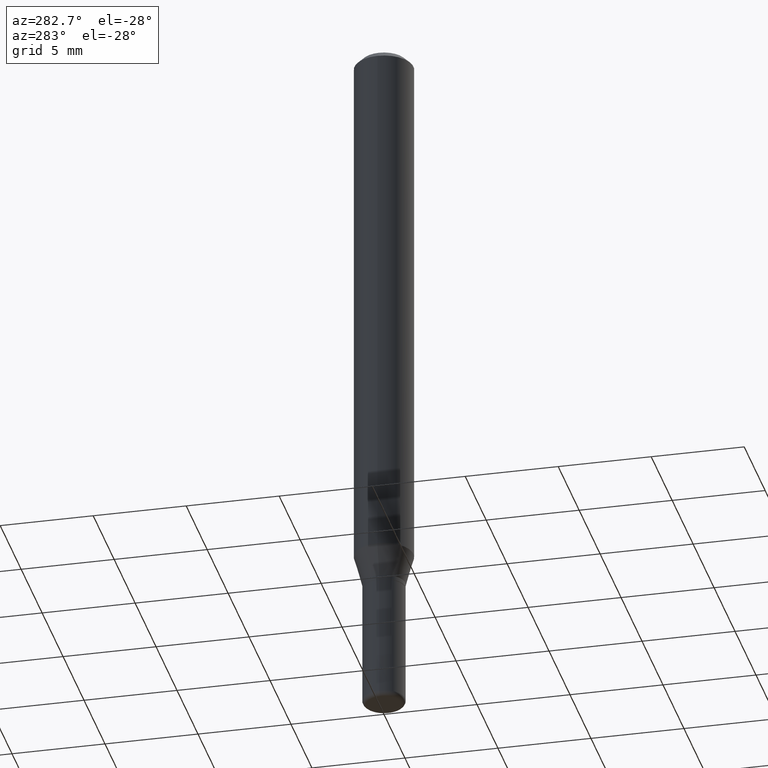
[diagram: clean part render]
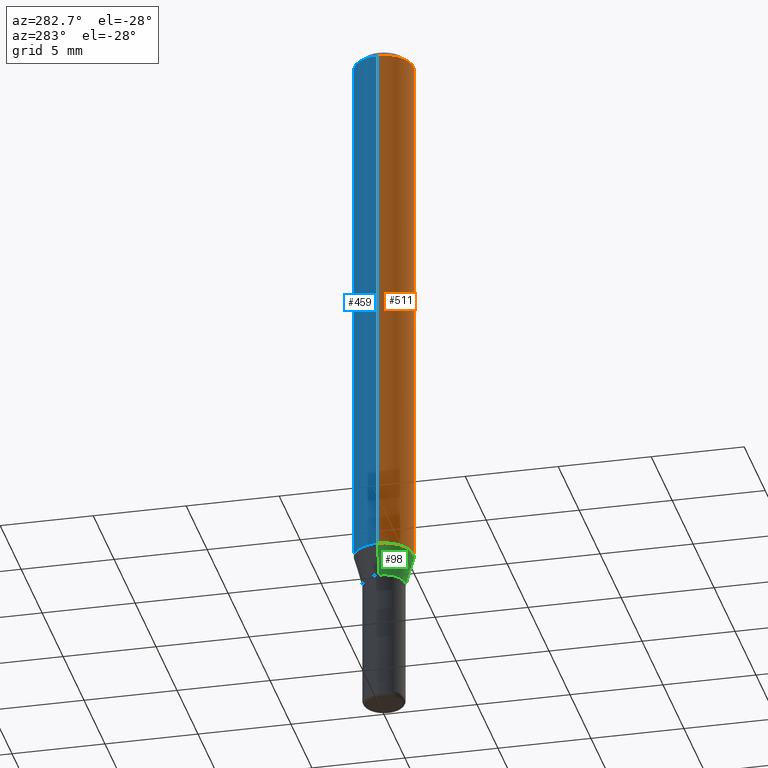
[diagram: same view with three faces highlighted in distinct colors, each labeled with its STEP entity id]
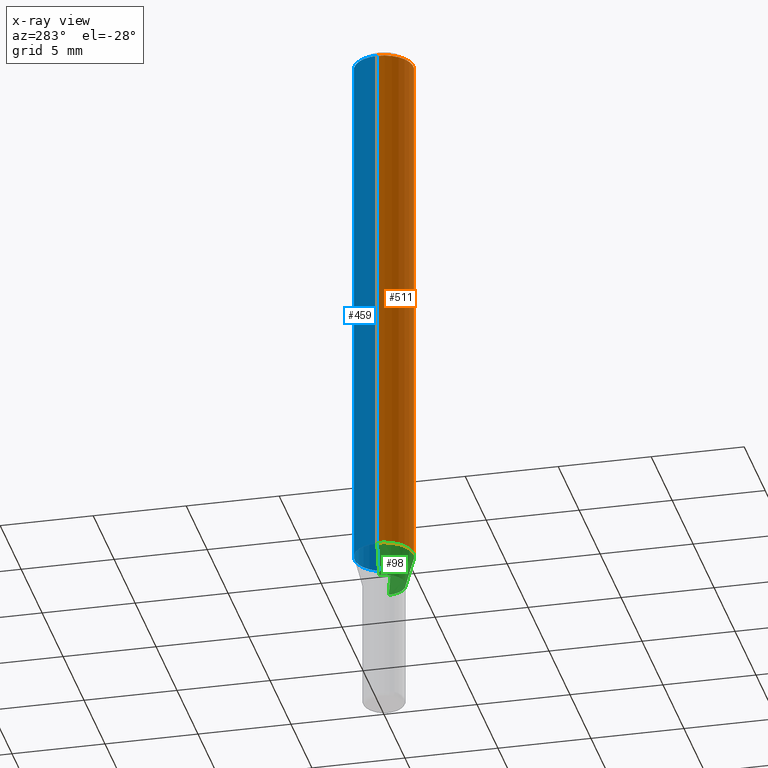
[diagram: x-ray of the same camera — body ghosted, the three highlighted faces saturated]
A machine part, auxiliary view with three faces highlighted in distinct colors.
The next image is the same camera in x-ray (body ghosted, the three faces saturated) — at least one of them is partly hidden behind the body in this view.
Their STEP definitions:

[orange] entity #511 — the highlighted cylindrical surface (edge-blend (fillet) strip) has radius 1.5875 mm, axis along (-0, 0, 1).
#8 = CARTESIAN_POINT ( 'NONE',  ( -0.06250000000000000000, -3.587486272909353851E-15, -1.154689110867544555 ) ) ;
#17 = CARTESIAN_POINT ( 'NONE',  ( 0.06250000000000000000, -4.468010650114807348E-15, -1.154689110867544555 ) ) ;
#26 = AXIS2_PLACEMENT_3D ( 'NONE', #35, #233, #514 ) ;
#35 = CARTESIAN_POINT ( 'NONE',  ( 3.668203209277632395E-31, -5.237222008264614861E-17, -0.01499999999999970281 ) ) ;
#36 = AXIS2_PLACEMENT_3D ( 'NONE', #457, #296, #176 ) ;
#42 = EDGE_CURVE ( 'NONE', #499, #113, #245, .T. ) ;
#61 = CARTESIAN_POINT ( 'NONE',  ( 2.823756201468231071E-29, -4.031575482759415678E-15, -1.154689110867544555 ) ) ;
#78 = DIRECTION ( 'NONE',  ( -2.445468806185136597E-29, 3.491481338843145583E-15, 1.000000000000000000 ) ) ;
#113 = VERTEX_POINT ( 'NONE', #504 ) ;
#131 = DIRECTION ( 'NONE',  ( -2.445468806185136877E-29, 3.491481338843145188E-15, 1.000000000000000000 ) ) ;
#145 = AXIS2_PLACEMENT_3D ( 'NONE', #61, #78, #301 ) ;
#153 = VECTOR ( 'NONE', #131, 39.37007874015748143 ) ;
#164 = CARTESIAN_POINT ( 'NONE',  ( -0.06250000000000000000, 4.440892098500626162E-16, -3.074334431409316114E-30 ) ) ;
#170 = EDGE_CURVE ( 'NONE', #384, #469, #314, .T. ) ;
#176 = DIRECTION ( 'NONE',  ( 1.000000000000000000, -6.982962677686266711E-15, 4.876176775795935793E-29 ) ) ;
#180 = FACE_OUTER_BOUND ( 'NONE', #484, .T. ) ;
#182 = CYLINDRICAL_SURFACE ( 'NONE', #36, 0.06250000000000000000 ) ;
#220 = CARTESIAN_POINT ( 'NONE',  ( -0.06250000000000000000, -1.597884641570968368E-15, -0.01499999999999970281 ) ) ;
#233 = DIRECTION ( 'NONE',  ( -2.445468806185136597E-29, 3.491481338843145583E-15, 1.000000000000000000 ) ) ;
#242 = DIRECTION ( 'NONE',  ( -2.445468806185136877E-29, 3.491481338843145188E-15, 1.000000000000000000 ) ) ;
#245 = CIRCLE ( 'NONE', #26, 0.06250000000000000000 ) ;
#258 = ORIENTED_EDGE ( 'NONE', *, *, #42, .F. ) ;
#288 = VECTOR ( 'NONE', #242, 39.37007874015748143 ) ;
#296 = DIRECTION ( 'NONE',  ( -2.445468806185136597E-29, 3.491481338843145583E-15, 1.000000000000000000 ) ) ;
#298 = ORIENTED_EDGE ( 'NONE', *, *, #370, .T. ) ;
#300 = ORIENTED_EDGE ( 'NONE', *, *, #170, .T. ) ;
#301 = DIRECTION ( 'NONE',  ( 1.000000000000000000, -6.982962677686270655E-15, 0.000000000000000000 ) ) ;
#314 = CIRCLE ( 'NONE', #145, 0.06250000000000000000 ) ;
#370 = EDGE_CURVE ( 'NONE', #469, #113, #400, .T. ) ;
#384 = VERTEX_POINT ( 'NONE', #8 ) ;
#388 = EDGE_CURVE ( 'NONE', #384, #499, #453, .T. ) ;
#393 = ORIENTED_EDGE ( 'NONE', *, *, #388, .F. ) ;
#400 = LINE ( 'NONE', #402, #153 ) ;
#402 = CARTESIAN_POINT ( 'NONE',  ( 0.06250000000000000000, -4.364351673553916694E-16, 3.047610484872459871E-30 ) ) ;
#453 = LINE ( 'NONE', #164, #288 ) ;
#457 = CARTESIAN_POINT ( 'NONE',  ( 0.000000000000000000, 0.000000000000000000, 0.000000000000000000 ) ) ;
#469 = VERTEX_POINT ( 'NONE', #17 ) ;
#484 = EDGE_LOOP ( 'NONE', ( #393, #300, #298, #258 ) ) ;
#499 = VERTEX_POINT ( 'NONE', #220 ) ;
#504 = CARTESIAN_POINT ( 'NONE',  ( 0.06250000000000000000, -4.888073874380378612E-16, -0.01499999999999970281 ) ) ;
#511 = ADVANCED_FACE ( 'NONE', ( #180 ), #182, .T. ) ;
#514 = DIRECTION ( 'NONE',  ( 1.000000000000000000, -6.982962677686266711E-15, 0.000000000000000000 ) ) ;

[blue] entity #459 — the highlighted cylindrical surface (edge-blend (fillet) strip) has radius 1.5875 mm, axis along (-0, 0, 1).
#8 = CARTESIAN_POINT ( 'NONE',  ( -0.06250000000000000000, -3.587486272909353851E-15, -1.154689110867544555 ) ) ;
#15 = AXIS2_PLACEMENT_3D ( 'NONE', #472, #72, #341 ) ;
#17 = CARTESIAN_POINT ( 'NONE',  ( 0.06250000000000000000, -4.468010650114807348E-15, -1.154689110867544555 ) ) ;
#25 = ORIENTED_EDGE ( 'NONE', *, *, #370, .F. ) ;
#71 = ORIENTED_EDGE ( 'NONE', *, *, #388, .T. ) ;
#72 = DIRECTION ( 'NONE',  ( -2.445468806185136597E-29, 3.491481338843145583E-15, 1.000000000000000000 ) ) ;
#80 = ORIENTED_EDGE ( 'NONE', *, *, #518, .F. ) ;
#104 = CARTESIAN_POINT ( 'NONE',  ( 3.668203209277632395E-31, -5.237222008264614861E-17, -0.01499999999999970281 ) ) ;
#113 = VERTEX_POINT ( 'NONE', #504 ) ;
#129 = EDGE_CURVE ( 'NONE', #469, #384, #396, .T. ) ;
#131 = DIRECTION ( 'NONE',  ( -2.445468806185136877E-29, 3.491481338843145188E-15, 1.000000000000000000 ) ) ;
#134 = DIRECTION ( 'NONE',  ( 1.000000000000000000, -6.982962677686266711E-15, 4.876176775795935793E-29 ) ) ;
#153 = VECTOR ( 'NONE', #131, 39.37007874015748143 ) ;
#164 = CARTESIAN_POINT ( 'NONE',  ( -0.06250000000000000000, 4.440892098500626162E-16, -3.074334431409316114E-30 ) ) ;
#220 = CARTESIAN_POINT ( 'NONE',  ( -0.06250000000000000000, -1.597884641570968368E-15, -0.01499999999999970281 ) ) ;
#242 = DIRECTION ( 'NONE',  ( -2.445468806185136877E-29, 3.491481338843145188E-15, 1.000000000000000000 ) ) ;
#254 = AXIS2_PLACEMENT_3D ( 'NONE', #104, #415, #331 ) ;
#269 = ORIENTED_EDGE ( 'NONE', *, *, #129, .T. ) ;
#288 = VECTOR ( 'NONE', #242, 39.37007874015748143 ) ;
#331 = DIRECTION ( 'NONE',  ( 1.000000000000000000, -6.982962677686266711E-15, 0.000000000000000000 ) ) ;
#341 = DIRECTION ( 'NONE',  ( 1.000000000000000000, -6.982962677686270655E-15, 0.000000000000000000 ) ) ;
#350 = EDGE_LOOP ( 'NONE', ( #269, #71, #80, #25 ) ) ;
#367 = FACE_OUTER_BOUND ( 'NONE', #350, .T. ) ;
#370 = EDGE_CURVE ( 'NONE', #469, #113, #400, .T. ) ;
#384 = VERTEX_POINT ( 'NONE', #8 ) ;
#388 = EDGE_CURVE ( 'NONE', #384, #499, #453, .T. ) ;
#396 = CIRCLE ( 'NONE', #15, 0.06250000000000000000 ) ;
#400 = LINE ( 'NONE', #402, #153 ) ;
#402 = CARTESIAN_POINT ( 'NONE',  ( 0.06250000000000000000, -4.364351673553916694E-16, 3.047610484872459871E-30 ) ) ;
#415 = DIRECTION ( 'NONE',  ( -2.445468806185136597E-29, 3.491481338843145583E-15, 1.000000000000000000 ) ) ;
#418 = DIRECTION ( 'NONE',  ( -2.445468806185136597E-29, 3.491481338843145583E-15, 1.000000000000000000 ) ) ;
#451 = AXIS2_PLACEMENT_3D ( 'NONE', #495, #418, #134 ) ;
#453 = LINE ( 'NONE', #164, #288 ) ;
#459 = ADVANCED_FACE ( 'NONE', ( #367 ), #467, .T. ) ;
#465 = CIRCLE ( 'NONE', #254, 0.06250000000000000000 ) ;
#467 = CYLINDRICAL_SURFACE ( 'NONE', #451, 0.06250000000000000000 ) ;
#469 = VERTEX_POINT ( 'NONE', #17 ) ;
#472 = CARTESIAN_POINT ( 'NONE',  ( 2.823756201468231071E-29, -4.031575482759415678E-15, -1.154689110867544555 ) ) ;
#495 = CARTESIAN_POINT ( 'NONE',  ( 0.000000000000000000, 0.000000000000000000, 0.000000000000000000 ) ) ;
#499 = VERTEX_POINT ( 'NONE', #220 ) ;
#504 = CARTESIAN_POINT ( 'NONE',  ( 0.06250000000000000000, -4.888073874380378612E-16, -0.01499999999999970281 ) ) ;
#518 = EDGE_CURVE ( 'NONE', #113, #499, #465, .T. ) ;

[green] entity #98 — the highlighted conical surface has half-angle 15 deg.
#8 = CARTESIAN_POINT ( 'NONE',  ( -0.06250000000000000000, -3.587486272909353851E-15, -1.154689110867544555 ) ) ;
#17 = CARTESIAN_POINT ( 'NONE',  ( 0.06250000000000000000, -4.468010650114807348E-15, -1.154689110867544555 ) ) ;
#39 = LINE ( 'NONE', #109, #178 ) ;
#41 = DIRECTION ( 'NONE',  ( 1.000000000000000000, -6.982962677686275388E-15, 0.000000000000000000 ) ) ;
#51 = LINE ( 'NONE', #353, #302 ) ;
#61 = CARTESIAN_POINT ( 'NONE',  ( 2.823756201468231071E-29, -4.031575482759415678E-15, -1.154689110867544555 ) ) ;
#65 = ORIENTED_EDGE ( 'NONE', *, *, #170, .F. ) ;
#78 = DIRECTION ( 'NONE',  ( -2.445468806185136597E-29, 3.491481338843145583E-15, 1.000000000000000000 ) ) ;
#89 = ORIENTED_EDGE ( 'NONE', *, *, #344, .F. ) ;
#98 = ADVANCED_FACE ( 'NONE', ( #198 ), #135, .T. ) ;
#109 = CARTESIAN_POINT ( 'NONE',  ( 0.04499999999999995670, -4.573840553884519999E-15, -1.220000000000000195 ) ) ;
#115 = CARTESIAN_POINT ( 'NONE',  ( 2.983471943545866670E-29, -4.259607233388637524E-15, -1.220000000000000195 ) ) ;
#135 = CONICAL_SURFACE ( 'NONE', #238, 0.04499999999999995670, 0.2617993877991494633 ) ;
#137 = AXIS2_PLACEMENT_3D ( 'NONE', #115, #189, #431 ) ;
#145 = AXIS2_PLACEMENT_3D ( 'NONE', #61, #78, #301 ) ;
#168 = VERTEX_POINT ( 'NONE', #202 ) ;
#170 = EDGE_CURVE ( 'NONE', #384, #469, #314, .T. ) ;
#178 = VECTOR ( 'NONE', #228, 39.37007874015748854 ) ;
#189 = DIRECTION ( 'NONE',  ( -2.445468806185136597E-29, 3.491481338843145583E-15, 1.000000000000000000 ) ) ;
#198 = FACE_OUTER_BOUND ( 'NONE', #387, .T. ) ;
#202 = CARTESIAN_POINT ( 'NONE',  ( -0.04499999999999995670, -3.763674637602973398E-15, -1.220000000000000195 ) ) ;
#210 = EDGE_CURVE ( 'NONE', #290, #469, #39, .T. ) ;
#228 = DIRECTION ( 'NONE',  ( 0.2588190451025207395, 1.565188264969626109E-15, 0.9659258262890682012 ) ) ;
#231 = CARTESIAN_POINT ( 'NONE',  ( 2.983471943545866670E-29, -4.259607233388637524E-15, -1.220000000000000195 ) ) ;
#237 = DIRECTION ( 'NONE',  ( -0.2588190451025207395, 5.211531920934546309E-15, 0.9659258262890682012 ) ) ;
#238 = AXIS2_PLACEMENT_3D ( 'NONE', #231, #304, #41 ) ;
#290 = VERTEX_POINT ( 'NONE', #382 ) ;
#294 = EDGE_CURVE ( 'NONE', #168, #290, #362, .T. ) ;
#301 = DIRECTION ( 'NONE',  ( 1.000000000000000000, -6.982962677686270655E-15, 0.000000000000000000 ) ) ;
#302 = VECTOR ( 'NONE', #237, 39.37007874015748854 ) ;
#304 = DIRECTION ( 'NONE',  ( -2.445468806185136597E-29, 3.491481338843145583E-15, 1.000000000000000000 ) ) ;
#314 = CIRCLE ( 'NONE', #145, 0.06250000000000000000 ) ;
#336 = ORIENTED_EDGE ( 'NONE', *, *, #294, .T. ) ;
#340 = ORIENTED_EDGE ( 'NONE', *, *, #210, .T. ) ;
#344 = EDGE_CURVE ( 'NONE', #168, #384, #51, .T. ) ;
#353 = CARTESIAN_POINT ( 'NONE',  ( -0.04499999999999995670, -3.939863002296592945E-15, -1.220000000000000195 ) ) ;
#362 = CIRCLE ( 'NONE', #137, 0.04499999999999995670 ) ;
#382 = CARTESIAN_POINT ( 'NONE',  ( 0.04499999999999995670, -4.573840553884519999E-15, -1.220000000000000195 ) ) ;
#384 = VERTEX_POINT ( 'NONE', #8 ) ;
#387 = EDGE_LOOP ( 'NONE', ( #89, #336, #340, #65 ) ) ;
#431 = DIRECTION ( 'NONE',  ( 1.000000000000000000, -6.982962677686275388E-15, 0.000000000000000000 ) ) ;
#469 = VERTEX_POINT ( 'NONE', #17 ) ;